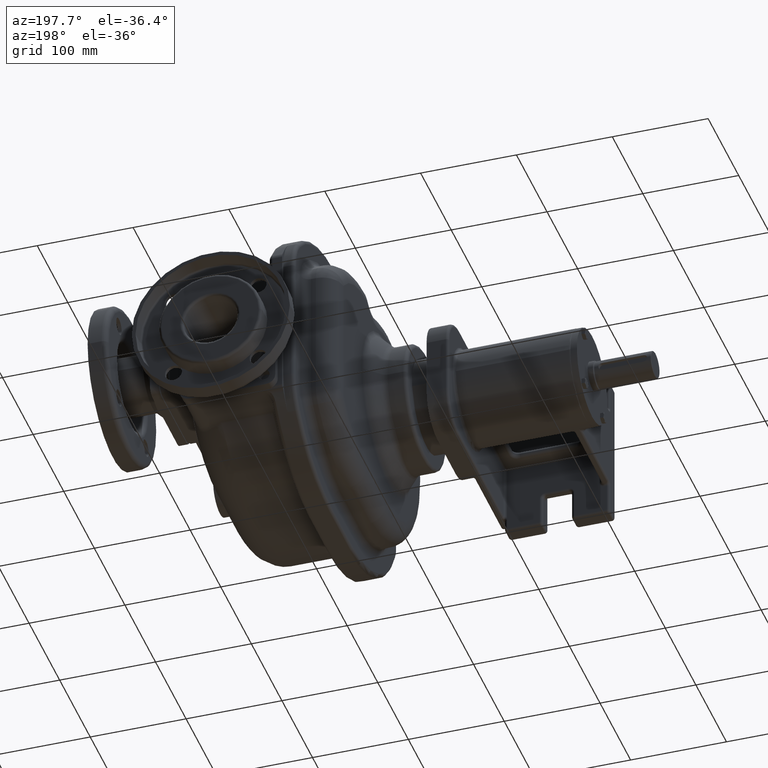
[diagram: clean part render]
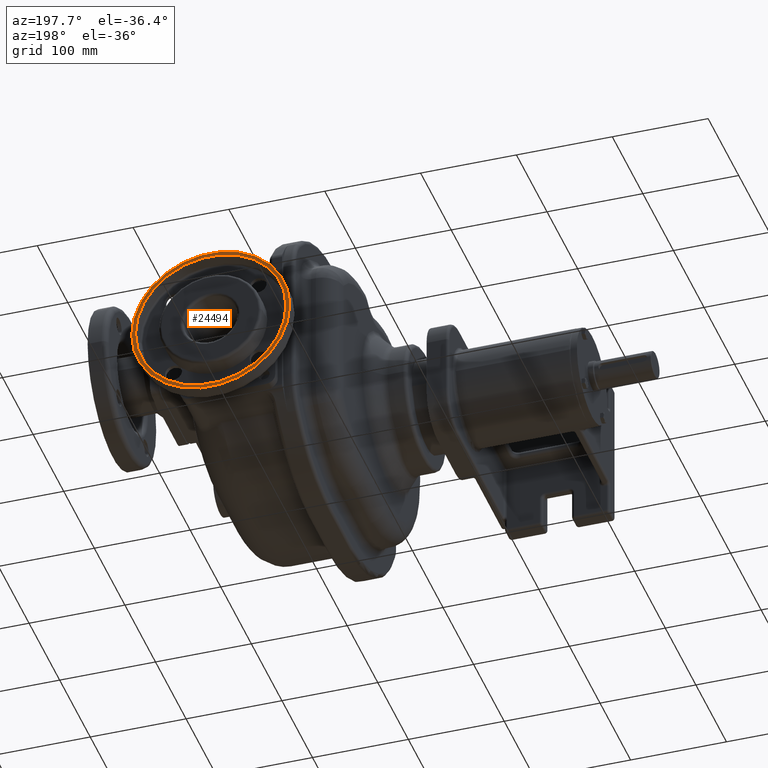
[diagram: same view with one face highlighted and labeled with its STEP entity id]
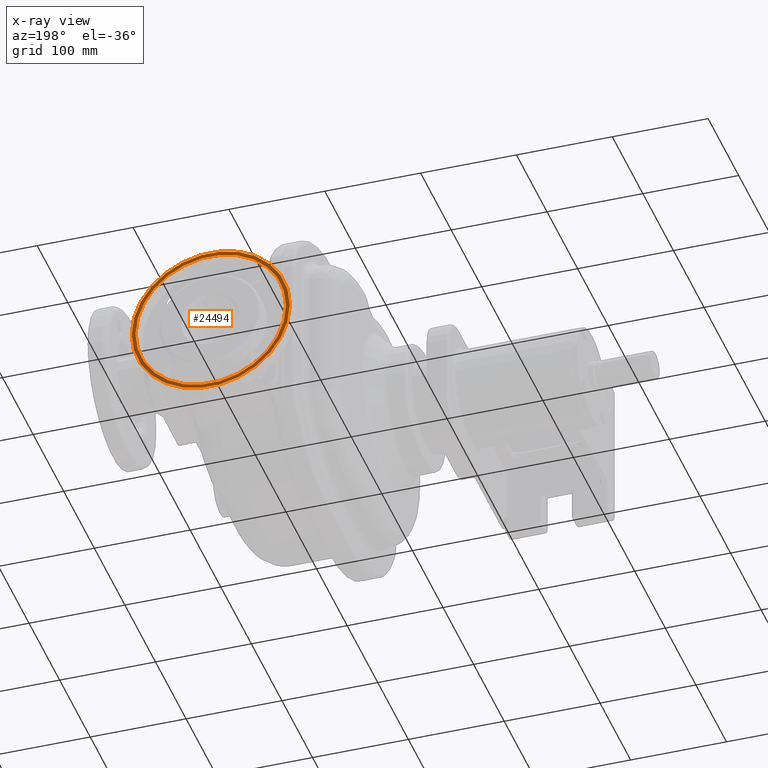
[diagram: x-ray of the same camera — body ghosted, the highlighted face saturated]
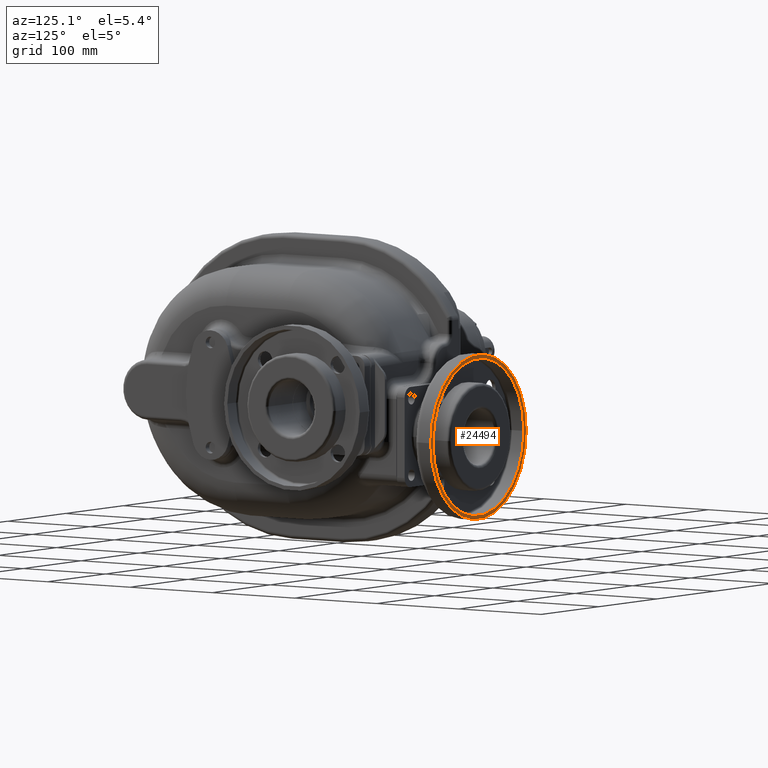
[diagram: same view with one face highlighted and labeled with its STEP entity id]
A machine part, auxiliary view. The second image highlights one B-rep face of the part: STEP entity #24494.
The next image is the same camera in x-ray: the body ghosted, the highlighted face saturated — about 0% of this face is hidden behind the body in this view.
A second angle (auxiliary view) of the same face is appended — the face is thin or edge-on in the first view.
In plain terms, the highlighted planar face has unit normal (0, 1, 0).
Its self-contained STEP definition (entity closure, byte-faithful):
#9354=CARTESIAN_POINT('',(2.7E1,2.615E2,-4.3E1));
#9355=DIRECTION('',(0.E0,1.E0,0.E0));
#9356=DIRECTION('',(-1.E0,0.E0,0.E0));
#9357=AXIS2_PLACEMENT_3D('',#9354,#9355,#9356);
#9367=CARTESIAN_POINT('',(2.7E1,2.615E2,-4.3E1));
#9368=DIRECTION('',(0.E0,-1.E0,0.E0));
#9369=DIRECTION('',(-1.E0,0.E0,0.E0));
#9370=AXIS2_PLACEMENT_3D('',#9367,#9368,#9369);
#9372=CARTESIAN_POINT('',(2.7E1,2.615E2,-4.3E1));
#9373=DIRECTION('',(0.E0,-1.E0,0.E0));
#9374=DIRECTION('',(-1.E0,0.E0,0.E0));
#9375=AXIS2_PLACEMENT_3D('',#9372,#9373,#9374);
#9377=CARTESIAN_POINT('',(2.7E1,2.615E2,-4.3E1));
#9378=DIRECTION('',(0.E0,1.E0,0.E0));
#9379=DIRECTION('',(-1.E0,0.E0,0.E0));
#9380=AXIS2_PLACEMENT_3D('',#9377,#9378,#9379);
#10447=CARTESIAN_POINT('',(-5.15E1,2.615E2,-4.3E1));
#10448=VERTEX_POINT('',#10447);
#10449=CARTESIAN_POINT('',(-5.55E1,2.615E2,-4.3E1));
#10451=VERTEX_POINT('',#10449);
#10467=CARTESIAN_POINT('',(1.055E2,2.615E2,-4.3E1));
#10468=VERTEX_POINT('',#10467);
#10469=CARTESIAN_POINT('',(1.095E2,2.615E2,-4.3E1));
#10471=VERTEX_POINT('',#10469);
#24479=CARTESIAN_POINT('',(2.7E1,2.615E2,-4.3E1));
#24480=DIRECTION('',(0.E0,1.E0,0.E0));
#24481=DIRECTION('',(1.E0,0.E0,0.E0));
#24482=AXIS2_PLACEMENT_3D('',#24479,#24480,#24481);
#24483=PLANE('',#24482);
#24484=ORIENTED_EDGE('',*,*,#24458,.F.);
#24485=ORIENTED_EDGE('',*,*,#24474,.T.);
#24486=EDGE_LOOP('',(#24484,#24485));
#24487=FACE_OUTER_BOUND('',#24486,.F.);
#24489=ORIENTED_EDGE('',*,*,#24488,.F.);
#24491=ORIENTED_EDGE('',*,*,#24490,.T.);
#24492=EDGE_LOOP('',(#24489,#24491));
#24493=FACE_BOUND('',#24492,.F.);
#24494=ADVANCED_FACE('',(#24487,#24493),#24483,.T.);
#9358=CIRCLE('',#9357,8.25E1);
#9371=CIRCLE('',#9370,8.25E1);
#9376=CIRCLE('',#9375,7.85E1);
#9381=CIRCLE('',#9380,7.85E1);
#24458=EDGE_CURVE('',#10451,#10471,#9358,.T.);
#24474=EDGE_CURVE('',#10451,#10471,#9371,.T.);
#24488=EDGE_CURVE('',#10448,#10468,#9376,.T.);
#24490=EDGE_CURVE('',#10448,#10468,#9381,.T.);